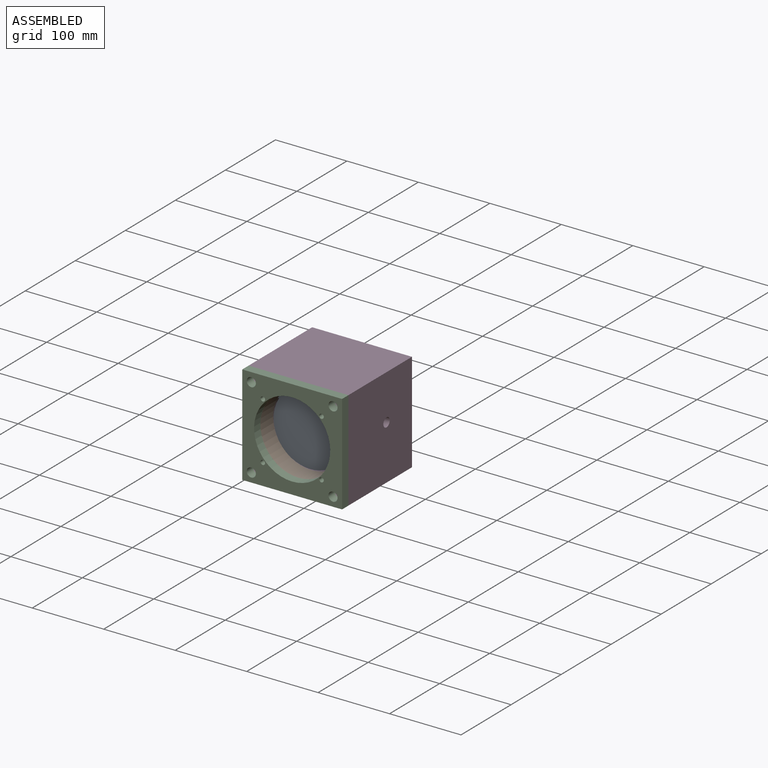
[diagram: assembled view]
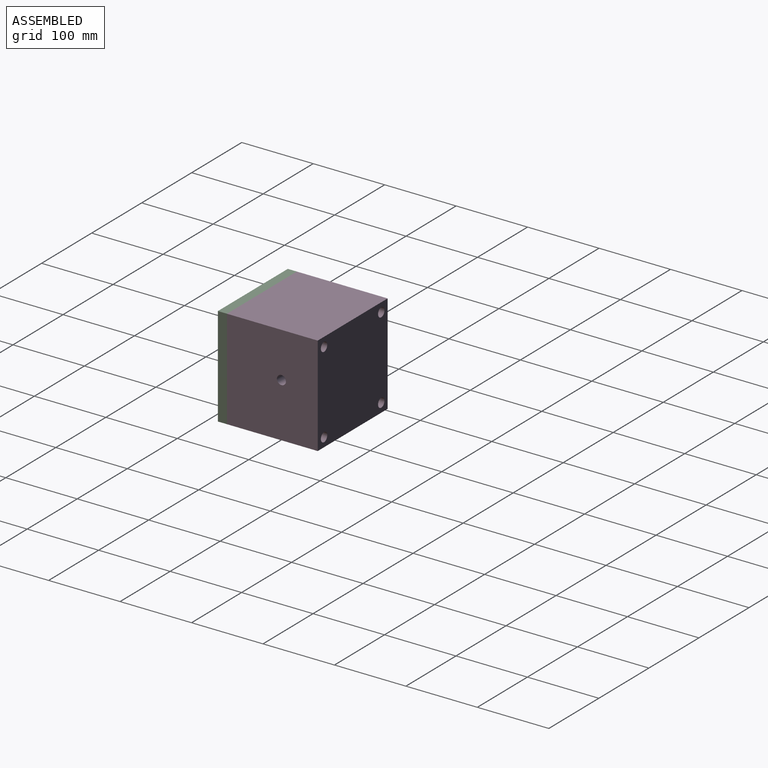
[diagram: assembled view, second angle]
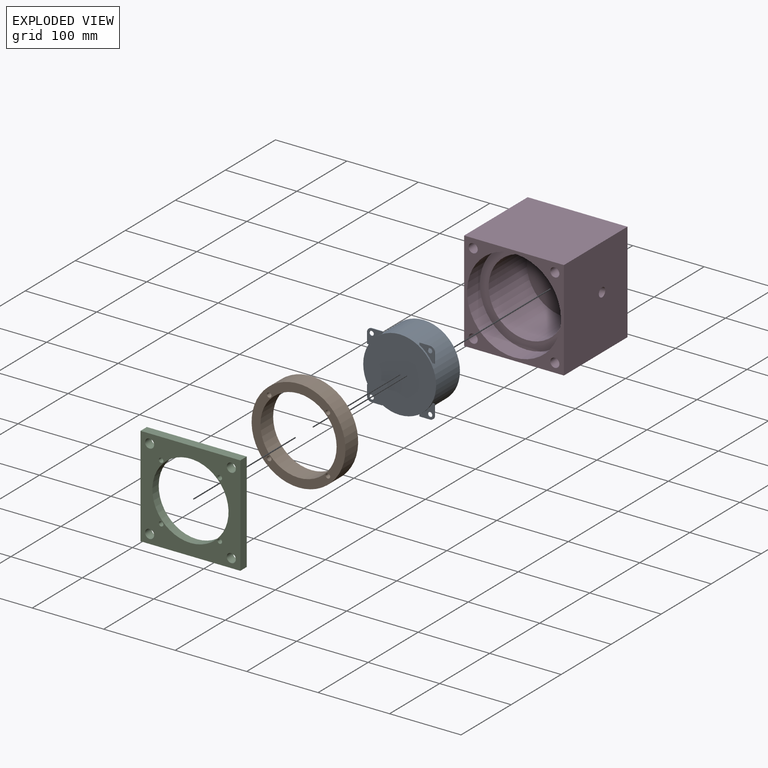
[diagram: exploded view]
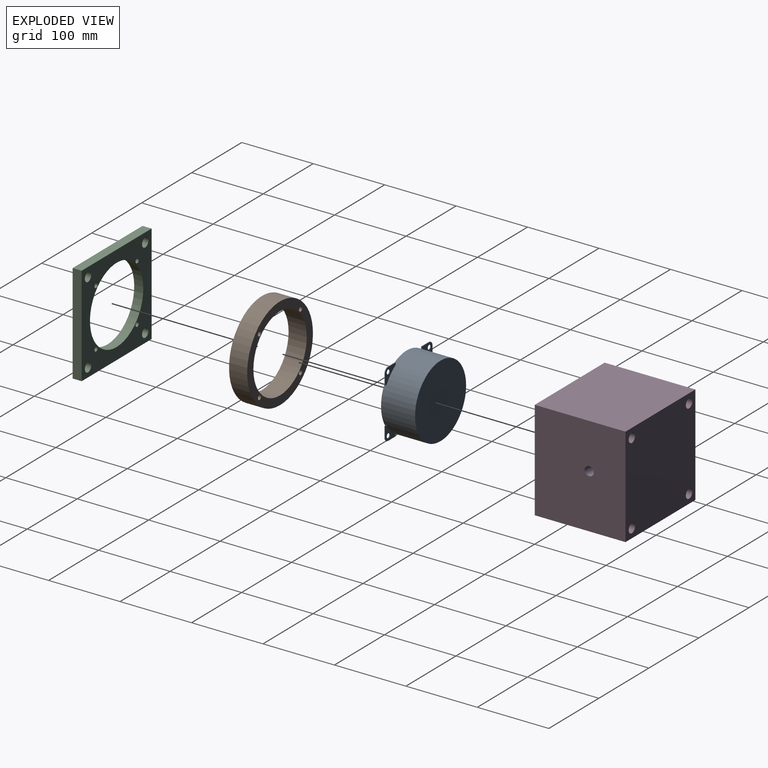
[diagram: exploded view, second angle]
ASSEMBLY  parts=4 mates=3
PART A: 35 faces, bbox 102x47.6x102 mm
  f0: cylinder r=51mm len=102mm, axis (0,1,0), area 15157.7mm2, adj f1,f2,f3,f7,f8,f9,f10,f11
  f1: plane 102x102mm, normal (0,-1,0), area 8171.3mm2, adj f0
  f2: plane 102x102mm, normal (0,1,0), area 8171.3mm2, adj f0
  f3: plane 3.18x1mm, normal (0,0,-1), area 3.2mm2, adj f0,f4,f8,f9
  f4: plane 14.78x1mm, normal (1,0,0), area 14.8mm2, adj f3,f8,f9,f33
  f5: plane 14.79x1mm, normal (0,0,1), area 14.8mm2, adj f7,f8,f9,f33
  f6: cylinder r=3.17mm len=6.35mm, axis (0,1,0), area 19.9mm2, adj f8,f9
  f7: plane 2.95x1mm, normal (-1,0,0), area 2.9mm2, adj f0,f5,f8,f9
  f8: plane 21.14x21.13mm, normal (0,-1,0), area 215.2mm2, adj f0,f3,f4,f5,f6,f7,f33
  f9: plane 21.14x21.13mm, normal (0,1,0), area 215.2mm2, adj f0,f3,f4,f5,f6,f7,f33
  f10: plane 3.18x1mm, normal (0,0,1), area 3.2mm2, adj f0,f13,f15,f16
  f11: plane 2.95x1mm, normal (-1,0,0), area 2.9mm2, adj f0,f12,f15,f16
  f12: plane 14.79x1mm, normal (0,0,-1), area 14.8mm2, adj f11,f15,f16,f32
  f13: plane 14.78x1mm, normal (1,0,0), area 14.8mm2, adj f10,f15,f16,f32
  f14: cylinder r=3.17mm len=6.35mm, axis (0,1,0), area 19.9mm2, adj f15,f16
  f15: plane 21.14x21.13mm, normal (0,-1,0), area 215.2mm2, adj f0,f10,f11,f12,f13,f14,f32
  f16: plane 21.14x21.13mm, normal (0,1,0), area 215.2mm2, adj f0,f10,f11,f12,f13,f14,f32
  f17: plane 2.95x1mm, normal (1,0,0), area 2.9mm2, adj f0,f18,f22,f23
  f18: plane 14.79x1mm, normal (0,0,1), area 14.8mm2, adj f17,f22,f23,f34
  f19: plane 14.78x1mm, normal (-1,0,0), area 14.8mm2, adj f20,f22,f23,f34
  f20: plane 3.18x1mm, normal (0,0,-1), area 3.2mm2, adj f0,f19,f22,f23
  f21: cylinder r=3.17mm len=6.35mm, axis (0,1,0), area 19.9mm2, adj f22,f23
  f22: plane 21.14x21.13mm, normal (0,-1,0), area 215.2mm2, adj f0,f17,f18,f19,f20,f21,f34
  f23: plane 21.14x21.13mm, normal (0,1,0), area 215.2mm2, adj f0,f17,f18,f19,f20,f21,f34
  f24: plane 3.18x1mm, normal (0,0,1), area 3.2mm2, adj f0,f25,f29,f30
  f25: plane 14.78x1mm, normal (-1,0,0), area 14.8mm2, adj f24,f29,f30,f31
  f26: plane 14.79x1mm, normal (0,0,-1), area 14.8mm2, adj f28,f29,f30,f31
  f27: cylinder r=3.17mm len=6.35mm, axis (0,1,0), area 19.9mm2, adj f29,f30
  f28: plane 2.95x1mm, normal (1,0,0), area 2.9mm2, adj f0,f26,f29,f30
  f29: plane 21.14x21.13mm, normal (0,-1,0), area 215.2mm2, adj f0,f24,f25,f26,f27,f28,f31
  f30: plane 21.14x21.13mm, normal (0,1,0), area 215.2mm2, adj f0,f24,f25,f26,f27,f28,f31
  f31: cylinder r=6.35mm len=6.35mm, axis (0,1,0), area 10mm2, adj f25,f26,f29,f30
  f32: cylinder r=6.35mm len=6.35mm, axis (0,1,0), area 10mm2, adj f12,f13,f15,f16
  f33: cylinder r=6.35mm len=6.35mm, axis (0,1,0), area 10mm2, adj f4,f5,f8,f9
  f34: cylinder r=6.35mm len=6.35mm, axis (0,1,0), area 10mm2, adj f18,f19,f22,f23
PART B: 8 faces, bbox 131.4x25.4x131.4 mm
  f0: plane 131.36x131.36mm, normal (0,-1,0), area 4494.1mm2, adj f2,f3,f4,f5,f6,f7
  f1: plane 131.36x131.36mm, normal (0,1,0), area 4494.1mm2, adj f2,f3,f4,f5,f6,f7
  f2: cylinder r=53.32mm len=106.64mm, axis (0,1,0), area 8509.3mm2, adj f0,f1
  f3: cylinder r=65.68mm len=131.36mm, axis (0,1,0), area 10481.9mm2, adj f0,f1
  f4: cylinder r=3.17mm len=25.4mm, axis (0,1,0), area 506.7mm2, adj f0,f1
  f5: cylinder r=3.17mm len=25.4mm, axis (0,1,0), area 506.7mm2, adj f0,f1
  f6: cylinder r=3.17mm len=25.4mm, axis (0,1,0), area 506.7mm2, adj f0,f1
  f7: cylinder r=3.17mm len=25.4mm, axis (0,1,0), area 506.7mm2, adj f0,f1
PART C: 15 faces, bbox 139.7x12.7x139.7 mm
  f0: plane 139.7x139.7mm, normal (0,-1,0), area 9951.4mm2, adj f2,f3,f4,f5,f6,f7,f8,f9
  f1: plane 139.7x139.7mm, normal (0,1,0), area 9951.4mm2, adj f2,f3,f4,f5,f6,f7,f8,f9
  f2: plane 139.7x12.7mm, normal (0,0,1), area 1774.2mm2, adj f0,f1,f3,f5
  f3: plane 139.7x12.7mm, normal (-1,0,0), area 1774.2mm2, adj f0,f1,f2,f4
  f4: plane 139.7x12.7mm, normal (0,0,-1), area 1774.2mm2, adj f0,f1,f3,f5
  f5: plane 139.7x12.7mm, normal (1,0,0), area 1774.2mm2, adj f0,f1,f2,f4
  f6: cylinder r=53.32mm len=106.64mm, axis (0,1,0), area 4254.7mm2, adj f0,f1
  f7: cylinder r=6.35mm len=12.7mm, axis (0,1,0), area 506.7mm2, adj f0,f1
  f8: cylinder r=6.35mm len=12.7mm, axis (0,1,0), area 506.7mm2, adj f0,f1
  f9: cylinder r=6.35mm len=12.7mm, axis (0,1,0), area 506.7mm2, adj f0,f1
  f10: cylinder r=6.35mm len=12.7mm, axis (0,1,0), area 506.7mm2, adj f0,f1
  f11: cylinder r=3.17mm len=12.7mm, axis (0,1,0), area 253.4mm2, adj f0,f1
  f12: cylinder r=3.17mm len=12.7mm, axis (0,1,0), area 253.4mm2, adj f0,f1
  f13: cylinder r=3.17mm len=12.7mm, axis (0,1,0), area 253.4mm2, adj f0,f1
  f14: cylinder r=3.17mm len=12.7mm, axis (0,1,0), area 253.4mm2, adj f0,f1
PART D: 15 faces, bbox 139.7x127x139.7 mm
  f0: plane 139.7x139.7mm, normal (0,1,0), area 19009.4mm2, adj f2,f3,f4,f5,f6,f7,f8,f9
  f1: plane 139.7x139.7mm, normal (0,-1,0), area 5457.3mm2, adj f2,f3,f4,f5,f6,f7,f8,f9
  f2: plane 139.7x127mm, normal (0,0,1), area 17741.9mm2, adj f0,f1,f3,f5
  f3: plane 139.7x127mm, normal (-1,0,0), area 17741.9mm2, adj f0,f1,f2,f4
  f4: plane 139.7x127mm, normal (0,0,-1), area 17741.9mm2, adj f0,f1,f3,f5
  f5: plane 139.7x127mm, normal (1,0,0), area 17615.2mm2, adj f0,f1,f2,f4,f14
  f6: cylinder r=6.35mm len=127mm, axis (0,-1,0), area 5067.1mm2, adj f0,f1
  f7: cylinder r=6.35mm len=127mm, axis (0,-1,0), area 5067.1mm2, adj f0,f1
  f8: cylinder r=6.35mm len=127mm, axis (0,-1,0), area 5067.1mm2, adj f0,f1
  f9: cylinder r=6.35mm len=127mm, axis (0,-1,0), area 5067.1mm2, adj f0,f1
  f10: cylinder r=65.68mm len=131.36mm, axis (0,-1,0), area 10481.9mm2, adj f1,f11
  f11: plane 131.36x131.36mm, normal (0,-1,0), area 4620.7mm2, adj f10,f13
  f12: plane 106.64x106.64mm, normal (0,-1,0), area 8931.3mm2, adj f13
  f13: cylinder r=53.32mm len=106.64mm, axis (0,-1,0), area 25400.6mm2, adj f11,f12,f14
  f14: cylinder r=6.35mm len=18.07mm, axis (1,0,0), area 682.4mm2, adj f5,f13
PLACE A t=(-227.9,-44.62,81.01)mm
PLACE B t=(-227.78,-45.62,81.21)mm
PLACE C t=(-227.78,-71.02,81.21)mm
PLACE D t=(-227.78,-71.02,81.21)mm
MATE fastened A.f21 <-> B.f4  axis (0,-1,0) through (-268.83,-45.62,121.39)mm
MATE fastened D.f6 <-> C.f7  axis (0,-1,0) through (-284.93,-71.02,138.36)mm
MATE fastened B.f4 <-> C.f11  axis (0,-1,0) through (-268.83,-71.02,121.39)mm
